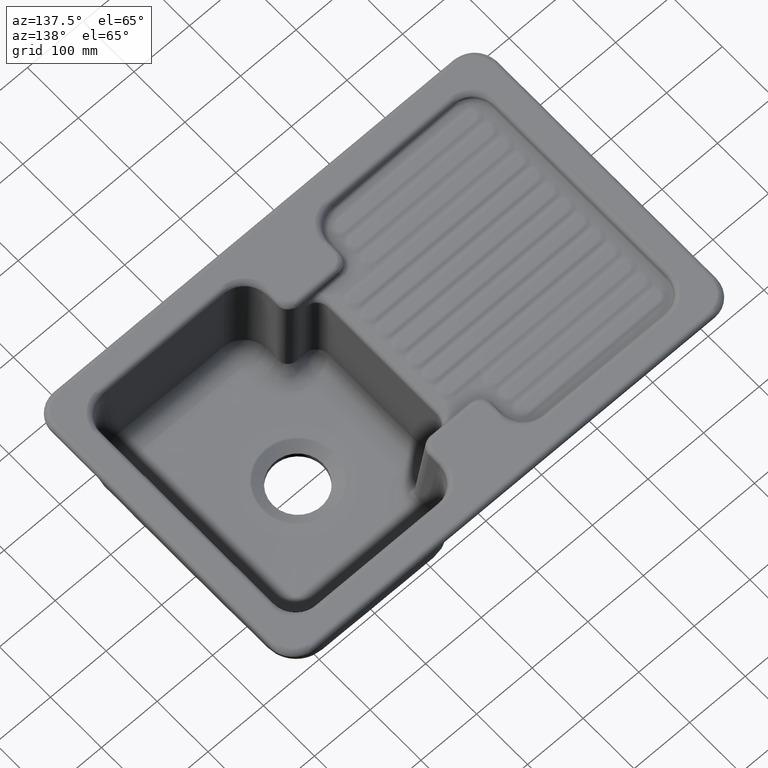
[diagram: clean part render]
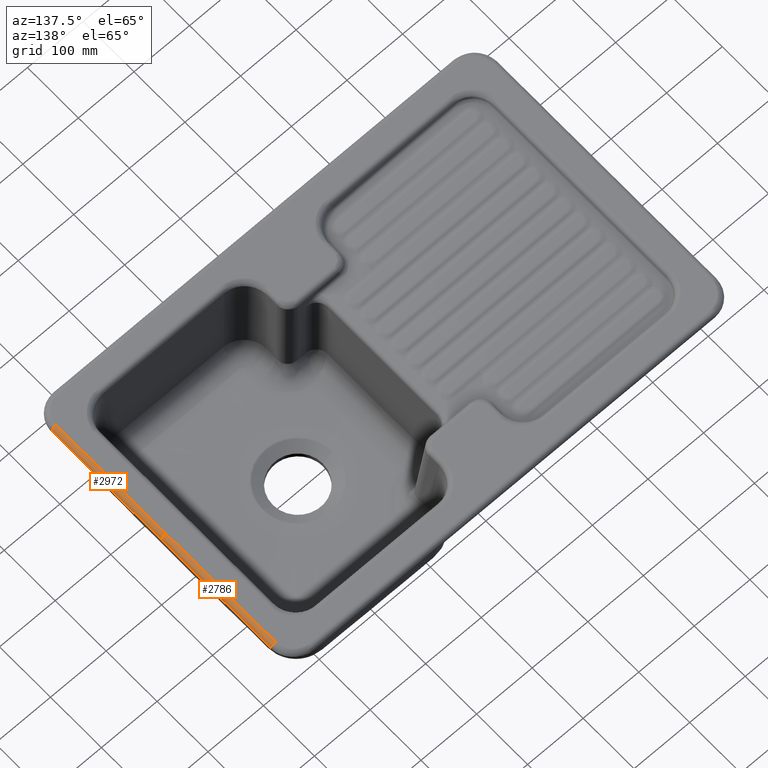
[diagram: same view with one multi-face feature highlighted, each face labeled with its STEP entity id]
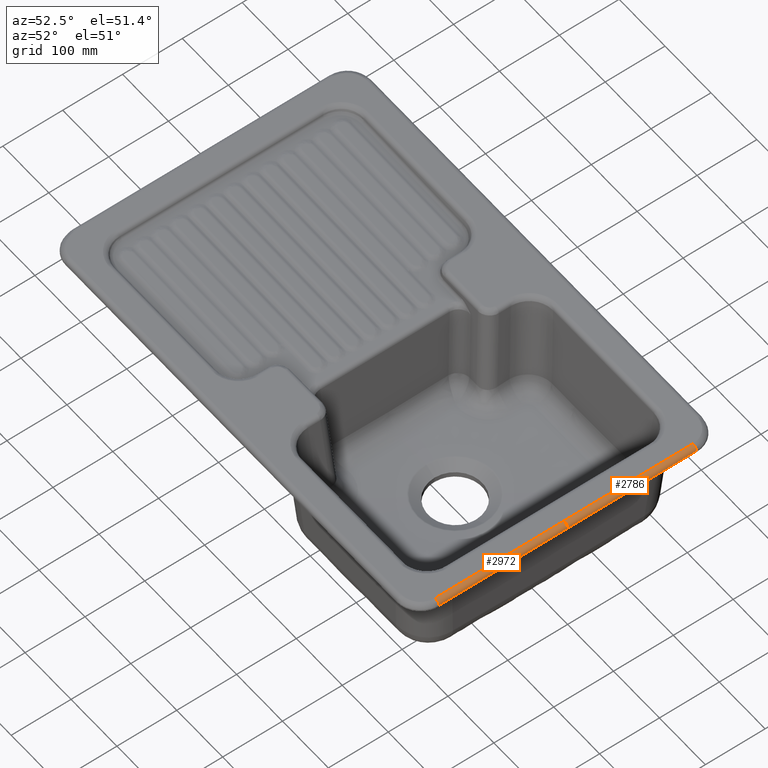
[diagram: same view with one multi-face feature highlighted, each face labeled with its STEP entity id]
A machine part, auxiliary view. The highlighted faces form ONE feature: a constant-radius fillet chain: 2 tangent blend faces with common blend radius 8 mm. The faces share edges in the B-rep.
A second angle (auxiliary view) of the same feature is appended — it is thin or edge-on in the first view.
Their STEP definitions:
[1] entity #2786 (Cylinder):
#396=CYLINDRICAL_SURFACE('',#12169,7.99999999998426);
#1166=CIRCLE('',#11941,8.);
#1318=CIRCLE('',#12168,8.);
#2089=B_SPLINE_CURVE_WITH_KNOTS('',3,(#29651,#29652,#29653,#29654,#29655,
#29656,#29657,#29658),.UNSPECIFIED.,.F.,.F.,(4,2,2,4),(0.,0.0743169862529795,
0.371584931264898,1.),.UNSPECIFIED.);
#2786=ADVANCED_FACE('',(#3619),#396,.T.);
#3619=FACE_OUTER_BOUND('',#4384,.T.);
#4384=EDGE_LOOP('',(#7107,#7108,#7109,#7110));
#7107=ORIENTED_EDGE('',*,*,#10478,.F.);
#7108=ORIENTED_EDGE('',*,*,#10479,.F.);
#7109=ORIENTED_EDGE('',*,*,#10480,.F.);
#7110=ORIENTED_EDGE('',*,*,#10068,.F.);
#8680=VERTEX_POINT('',#25111);
#8681=VERTEX_POINT('',#25112);
#8921=VERTEX_POINT('',#29648);
#8922=VERTEX_POINT('',#29650);
#10068=EDGE_CURVE('',#8680,#8681,#1166,.T.);
#10478=EDGE_CURVE('',#8921,#8680,#11110,.T.);
#10479=EDGE_CURVE('',#8922,#8921,#1318,.T.);
#10480=EDGE_CURVE('',#8681,#8922,#2089,.T.);
#11110=LINE('',#29647,#11365);
#11365=VECTOR('',#14040,1.);
#11941=AXIS2_PLACEMENT_3D('',#25110,#13531,#13532);
#12168=AXIS2_PLACEMENT_3D('',#29649,#14041,#14042);
#12169=AXIS2_PLACEMENT_3D('',#29659,#14043,#14044);
#13531=DIRECTION('',(0.,1.,0.));
#13532=DIRECTION('',(0.,0.,1.));
#14040=DIRECTION('',(0.,1.,0.));
#14041=DIRECTION('',(0.,-1.,0.));
#14042=DIRECTION('',(0.,0.,-1.));
#14043=DIRECTION('',(-1.00195924432597E-27,1.,-1.43796296452004E-13));
#14044=DIRECTION('',(0.,1.38777878078418E-13,1.));
#25110=CARTESIAN_POINT('',(392.274489801543,-784.706016663068,-8.));
#25111=CARTESIAN_POINT('',(392.274489801543,-784.706016663068,-3.02704881148018E-16));
#25112=CARTESIAN_POINT('',(400.269616417696,-784.706016663068,-7.72080402638));
#29647=CARTESIAN_POINT('',(392.274489801543,-892.353008331533,-6.77178483906104E-16));
#29648=CARTESIAN_POINT('',(392.274489801543,-1000.,7.87032690984846E-16));
#29649=CARTESIAN_POINT('',(392.274489801543,-1000.,-8.));
#29650=CARTESIAN_POINT('',(400.269616417696,-1000.,-7.72080402637999));
#29651=CARTESIAN_POINT('',(400.269616417696,-784.706016663068,-7.72080402638));
#29652=CARTESIAN_POINT('',(400.269616417696,-790.039349996401,-7.72080402638));
#29653=CARTESIAN_POINT('',(400.269616417696,-795.372683329734,-7.72080402637999));
#29654=CARTESIAN_POINT('',(400.269616417696,-822.039349996401,-7.72080402637999));
#29655=CARTESIAN_POINT('',(400.269616417696,-843.372683329734,-7.72080402637999));
#29656=CARTESIAN_POINT('',(400.269616417696,-909.804011108712,-7.72080402637999));
#29657=CARTESIAN_POINT('',(400.269616417696,-954.902005554356,-7.72080402637999));
#29658=CARTESIAN_POINT('',(400.269616417696,-1000.,-7.72080402637999));
#29659=CARTESIAN_POINT('',(392.274489801543,-784.706016663068,-7.99999999999974));
[2] entity #2972 (Cylinder):
#458=CYLINDRICAL_SURFACE('',#12412,8.00000000000021);
#1318=CIRCLE('',#12168,8.);
#1327=CIRCLE('',#12190,8.);
#2240=B_SPLINE_CURVE_WITH_KNOTS('',3,(#34309,#34310,#34311,#34312,#34313,
#34314,#34315,#34316),.UNSPECIFIED.,.F.,.F.,(4,2,2,4),(0.,0.0743169862529795,
0.371584931264898,1.),.UNSPECIFIED.);
#2972=ADVANCED_FACE('',(#3805),#458,.T.);
#3805=FACE_OUTER_BOUND('',#4570,.T.);
#4570=EDGE_LOOP('',(#7977,#7978,#7979,#7980));
#7977=ORIENTED_EDGE('',*,*,#10919,.T.);
#7978=ORIENTED_EDGE('',*,*,#10516,.T.);
#7979=ORIENTED_EDGE('',*,*,#10920,.T.);
#7980=ORIENTED_EDGE('',*,*,#10479,.T.);
#8921=VERTEX_POINT('',#29648);
#8922=VERTEX_POINT('',#29650);
#8942=VERTEX_POINT('',#29871);
#8943=VERTEX_POINT('',#29872);
#10479=EDGE_CURVE('',#8922,#8921,#1318,.T.);
#10516=EDGE_CURVE('',#8942,#8943,#1327,.T.);
#10919=EDGE_CURVE('',#8921,#8942,#11179,.T.);
#10920=EDGE_CURVE('',#8943,#8922,#2240,.T.);
#11179=LINE('',#34308,#11434);
#11434=VECTOR('',#14597,1.);
#12168=AXIS2_PLACEMENT_3D('',#29649,#14041,#14042);
#12190=AXIS2_PLACEMENT_3D('',#29870,#14100,#14101);
#12412=AXIS2_PLACEMENT_3D('',#34317,#14598,#14599);
#14041=DIRECTION('',(0.,-1.,0.));
#14042=DIRECTION('',(0.,0.,-1.));
#14100=DIRECTION('',(0.,1.,0.));
#14101=DIRECTION('',(0.,0.,1.));
#14597=DIRECTION('',(0.,-1.,0.));
#14598=DIRECTION('',(0.,-1.,0.));
#14599=DIRECTION('',(0.,0.,-1.));
#29648=CARTESIAN_POINT('',(392.274489801543,-1000.,7.87032690984846E-16));
#29649=CARTESIAN_POINT('',(392.274489801543,-1000.,-8.));
#29650=CARTESIAN_POINT('',(400.269616417696,-1000.,-7.72080402637999));
#29870=CARTESIAN_POINT('',(392.274489801543,-1215.29398333693,-8.));
#29871=CARTESIAN_POINT('',(392.274489801543,-1215.29398333693,-3.02704881148018E-16));
#29872=CARTESIAN_POINT('',(400.269616417696,-1215.29398333693,-7.72080402638));
#34308=CARTESIAN_POINT('',(392.274489801543,-1107.64699166847,-6.77178483906103E-16));
#34309=CARTESIAN_POINT('',(400.269616417696,-1215.29398333693,-7.72080402638));
#34310=CARTESIAN_POINT('',(400.269616417696,-1209.9606500036,-7.72080402638));
#34311=CARTESIAN_POINT('',(400.269616417696,-1204.62731667027,-7.72080402637999));
#34312=CARTESIAN_POINT('',(400.269616417696,-1177.9606500036,-7.72080402637999));
#34313=CARTESIAN_POINT('',(400.269616417696,-1156.62731667027,-7.72080402637999));
#34314=CARTESIAN_POINT('',(400.269616417696,-1090.19598889129,-7.72080402637999));
#34315=CARTESIAN_POINT('',(400.269616417696,-1045.09799444564,-7.72080402637999));
#34316=CARTESIAN_POINT('',(400.269616417696,-1000.,-7.72080402637999));
#34317=CARTESIAN_POINT('',(392.274489801543,-1215.29398333693,-7.9999999999998));